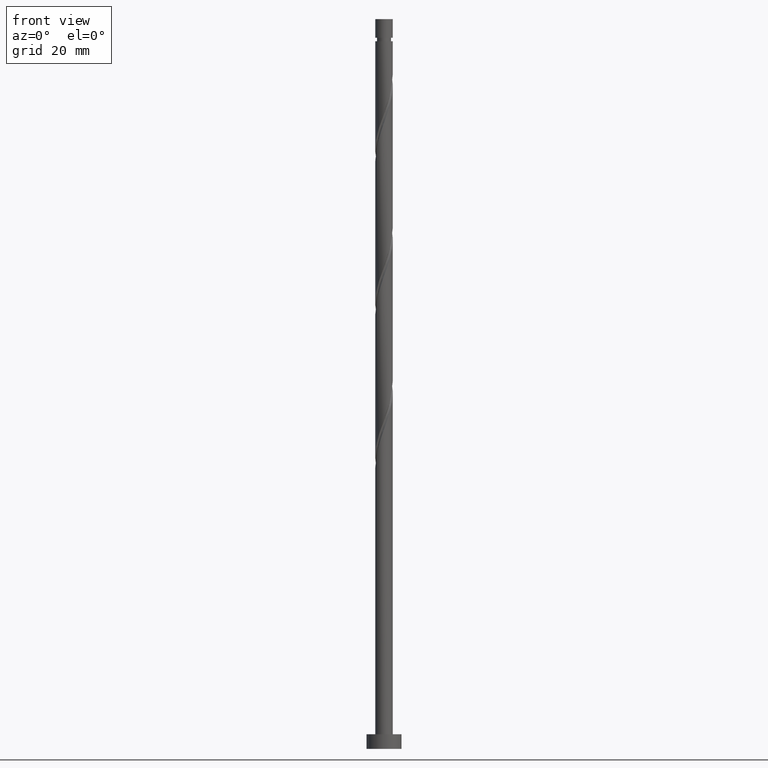
[diagram: clean part render]
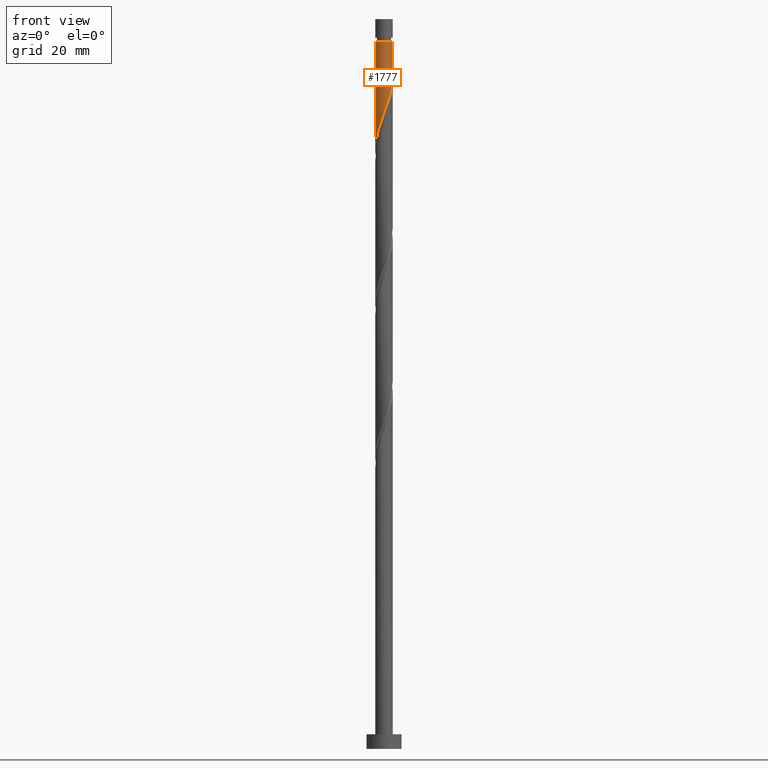
[diagram: same view with one face highlighted and labeled with its STEP entity id]
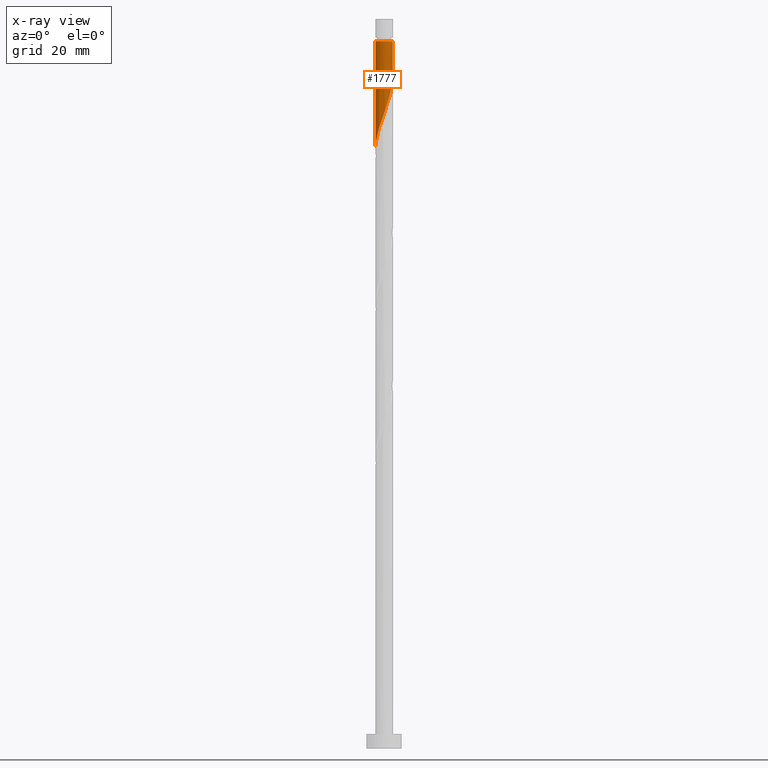
[diagram: x-ray of the same camera — body ghosted, the highlighted face saturated]
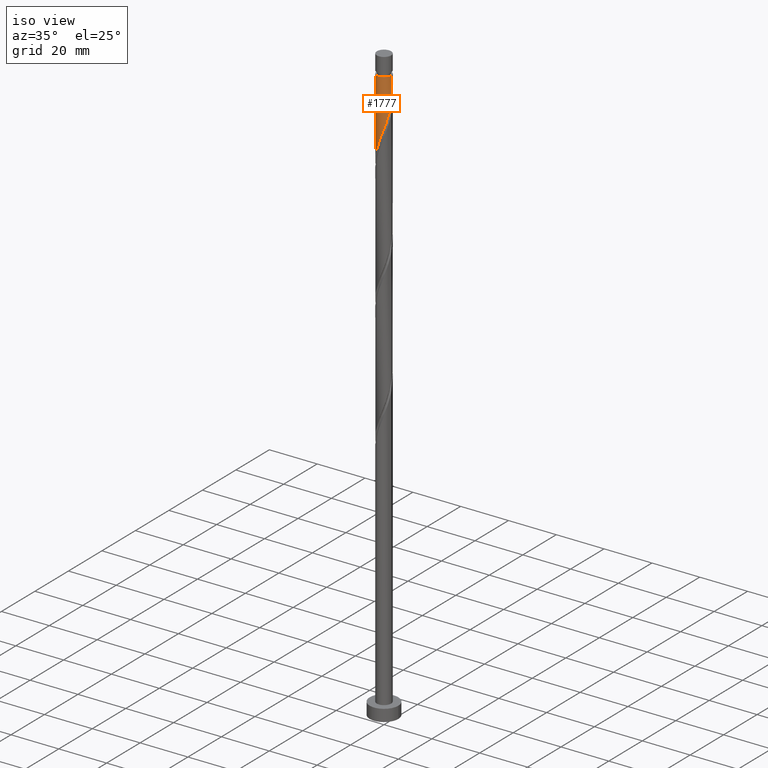
[diagram: same view with one face highlighted and labeled with its STEP entity id]
A machine part, front view. The second image highlights one B-rep face of the part: STEP entity #1777.
The next image is the same camera in x-ray: the body ghosted, the highlighted face saturated — about 0% of this face is hidden behind the body in this view.
A second angle (iso view) of the same face is appended — the face is thin or edge-on in the first view.
In plain terms, the highlighted cylindrical surface (edge-blend (fillet) strip) has radius 3 mm, axis along (-0, -0, -1).
Its self-contained STEP definition (entity closure, byte-faithful):
#40 = CARTESIAN_POINT ( 'NONE',  ( -2.516856822501207347, -1.667239772048620283, 209.5885515846316878 ) ) ;
#49 = CARTESIAN_POINT ( 'NONE',  ( -1.544221415739432501, -2.594154378914892867, 213.3385515846317162 ) ) ;
#55 = AXIS2_PLACEMENT_3D ( 'NONE', #210, #521, #60 ) ;
#60 = DIRECTION ( 'NONE',  ( -1.000000000000000000, 0.000000000000000000, 0.000000000000000000 ) ) ;
#160 = CARTESIAN_POINT ( 'NONE',  ( -2.999131382082420583, -0.07218693100826277520, 204.9010515846316594 ) ) ;
#162 = ORIENTED_EDGE ( 'NONE', *, *, #298, .F. ) ;
#175 = VECTOR ( 'NONE', #1135, 1000.000000000000000 ) ;
#178 = CARTESIAN_POINT ( 'NONE',  ( 1.366312515670594641, -2.670803270464129575, 221.7760515846316878 ) ) ;
#210 = CARTESIAN_POINT ( 'NONE',  ( 0.000000000000000000, 0.000000000000000000, 250.0000000000000000 ) ) ;
#275 = EDGE_LOOP ( 'NONE', ( #801, #976, #1255, #162 ) ) ;
#298 = EDGE_CURVE ( 'NONE', #1192, #1520, #477, .T. ) ;
#313 = CARTESIAN_POINT ( 'NONE',  ( -0.9282509055703001000, -2.872735104178512078, 215.2135515846316878 ) ) ;
#354 = CYLINDRICAL_SURFACE ( 'NONE', #55, 3.000000000000000444 ) ;
#360 = EDGE_CURVE ( 'NONE', #1549, #1192, #941, .T. ) ;
#381 = CARTESIAN_POINT ( 'NONE',  ( -3.000000000000000444, 0.000000000000000000, 250.0000000000000000 ) ) ;
#389 = VECTOR ( 'NONE', #632, 1000.000000000000000 ) ;
#430 = DIRECTION ( 'NONE',  ( -1.000000000000000000, 0.000000000000000000, 0.000000000000000000 ) ) ;
#471 = CARTESIAN_POINT ( 'NONE',  ( 1.065385259292570330, -2.824749718427053136, 220.8385515846316878 ) ) ;
#477 =( BOUNDED_CURVE ( )  B_SPLINE_CURVE ( 2, ( #1379, #1390, #1059, #1535, #639, #810, #1223, #1212, #933, #1370, #178, #471, #799, #1361, #768, #1678, #1080, #313, #1232, #49, #909, #789, #1655, #40, #1090, #1509, #1820, #649, #160, #1811, #490 ),
 .UNSPECIFIED., .F., .T. ) 
 B_SPLINE_CURVE_WITH_KNOTS ( ( 3, 2, 2, 2, 2, 2, 2, 2, 2, 2, 2, 2, 2, 2, 2, 3 ),
 ( 0.3045303401299220281, 0.3125000000000000000, 0.3214285714285714524, 0.3303571428571428492, 0.3392857142857143016, 0.3482142857142856984, 0.3571428571428571508, 0.3660714285714285476, 0.3750000000000000000, 0.3839285714285714524, 0.3928571428571428492, 0.4017857142857143016, 0.4107142857142856984, 0.4196428571428571508, 0.4285714285714285476, 0.4295303401299216950 ),
 .UNSPECIFIED. ) 
 CURVE ( )  GEOMETRIC_REPRESENTATION_ITEM ( )  RATIONAL_B_SPLINE_CURVE ( ( 0.9079949616362029685, 0.9039886423360660173, 0.9090909090909328194, 0.9033747362666078029, 0.9090909090909328194, 0.9033747362666078029, 0.9090909090909328194, 0.9033747362666078029, 0.9090909090909328194, 0.9033747362666078029, 0.9090909090909328194, 0.9033747362666078029, 0.9090909090909328194, 0.9033747362666078029, 0.9090909090909328194, 0.9033747362666078029, 0.9090909090909328194, 0.9033747362666078029, 0.9090909090909328194, 0.9033747362666078029, 0.9090909090909328194, 0.9033747362666078029, 0.9090909090909328194, 0.9033747362666078029, 0.9090909090909328194, 0.9033747362666078029, 0.9090909090909328194, 0.9033747362666078029, 0.9090909090909328194, 0.9084770030214748271, 0.9079949616362033016 ) ) 
 REPRESENTATION_ITEM ( '' )  );
#490 = CARTESIAN_POINT ( 'NONE',  ( -3.000000000000000444, -3.731443380381541184E-15, 204.7005686625377621 ) ) ;
#520 = DIRECTION ( 'NONE',  ( -0.000000000000000000, -0.000000000000000000, -1.000000000000000000 ) ) ;
#521 = DIRECTION ( 'NONE',  ( -0.000000000000000000, -0.000000000000000000, -1.000000000000000000 ) ) ;
#543 = LINE ( 'NONE', #381, #175 ) ;
#632 = DIRECTION ( 'NONE',  ( -0.000000000000000000, -0.000000000000000000, -1.000000000000000000 ) ) ;
#639 = CARTESIAN_POINT ( 'NONE',  ( 2.733444741546702250, -1.236236160654866190, 227.4010515846316309 ) ) ;
#649 = CARTESIAN_POINT ( 'NONE',  ( -2.990997868343353794, -0.4101078809741723341, 205.8385515846317446 ) ) ;
#694 = EDGE_CURVE ( 'NONE', #1549, #1341, #747, .T. ) ;
#747 = CIRCLE ( 'NONE', #1732, 2.999999999999983125 ) ;
#768 = CARTESIAN_POINT ( 'NONE',  ( 0.07218693100826256703, -2.999131382082420583, 218.0260515846316878 ) ) ;
#788 = CARTESIAN_POINT ( 'NONE',  ( -3.000000000000000444, -3.731443380381541184E-15, 204.7005686625377621 ) ) ;
#789 = CARTESIAN_POINT ( 'NONE',  ( -2.082758216016309394, -2.185491920847151270, 211.4635515846317446 ) ) ;
#799 = CARTESIAN_POINT ( 'NONE',  ( 0.7377465701333710824, -2.907873793385202799, 219.9010515846316594 ) ) ;
#801 = ORIENTED_EDGE ( 'NONE', *, *, #360, .F. ) ;
#810 = CARTESIAN_POINT ( 'NONE',  ( 2.594154378914892867, -1.544221415739432501, 226.4635515846317162 ) ) ;
#908 = CARTESIAN_POINT ( 'NONE',  ( 2.999999999999983125, 3.673940397442049514E-16, 242.4010515846316878 ) ) ;
#909 = CARTESIAN_POINT ( 'NONE',  ( -1.813489815877870504, -2.389823149881022069, 212.4010515846316594 ) ) ;
#933 = CARTESIAN_POINT ( 'NONE',  ( 1.926365846447885444, -2.299807519258759037, 223.6510515846316309 ) ) ;
#941 = LINE ( 'NONE', #1685, #389 ) ;
#976 = ORIENTED_EDGE ( 'NONE', *, *, #694, .T. ) ;
#1054 = EDGE_CURVE ( 'NONE', #1341, #1520, #543, .T. ) ;
#1059 = CARTESIAN_POINT ( 'NONE',  ( 2.940000000000000391, -0.5969924622639736222, 229.2760515846316594 ) ) ;
#1080 = CARTESIAN_POINT ( 'NONE',  ( -0.5969924622639734002, -2.940000000000000391, 216.1510515846316594 ) ) ;
#1090 = CARTESIAN_POINT ( 'NONE',  ( -2.670803270464129575, -1.366312515670594641, 208.6510515846316594 ) ) ;
#1096 = CARTESIAN_POINT ( 'NONE',  ( 3.000000000000000444, -7.612144495978345545E-16, 230.9505686625377336 ) ) ;
#1135 = DIRECTION ( 'NONE',  ( -0.000000000000000000, -0.000000000000000000, -1.000000000000000000 ) ) ;
#1192 = VERTEX_POINT ( 'NONE', #1096 ) ;
#1212 = CARTESIAN_POINT ( 'NONE',  ( 2.185491920847151270, -2.082758216016309394, 224.5885515846316594 ) ) ;
#1223 = CARTESIAN_POINT ( 'NONE',  ( 2.389823149881022069, -1.813489815877870948, 225.5260515846316878 ) ) ;
#1232 = CARTESIAN_POINT ( 'NONE',  ( -1.236236160654866190, -2.733444741546702250, 214.2760515846316878 ) ) ;
#1255 = ORIENTED_EDGE ( 'NONE', *, *, #1054, .T. ) ;
#1325 = CARTESIAN_POINT ( 'NONE',  ( -2.999999999999983125, 0.000000000000000000, 242.4010515846316878 ) ) ;
#1341 = VERTEX_POINT ( 'NONE', #1325 ) ;
#1361 = CARTESIAN_POINT ( 'NONE',  ( 0.4101078809741720566, -2.990997868343353794, 218.9635515846316594 ) ) ;
#1370 = CARTESIAN_POINT ( 'NONE',  ( 1.667239772048620283, -2.516856822501207791, 222.7135515846317162 ) ) ;
#1379 = CARTESIAN_POINT ( 'NONE',  ( 3.000000000000000444, -7.612144495978345545E-16, 230.9505686625377336 ) ) ;
#1390 = CARTESIAN_POINT ( 'NONE',  ( 3.000000000000000888, -0.3015113445777648504, 230.1122975835741613 ) ) ;
#1400 = FACE_OUTER_BOUND ( 'NONE', #275, .T. ) ;
#1509 = CARTESIAN_POINT ( 'NONE',  ( -2.824749718427053136, -1.065385259292570330, 207.7135515846316594 ) ) ;
#1520 = VERTEX_POINT ( 'NONE', #788 ) ;
#1535 = CARTESIAN_POINT ( 'NONE',  ( 2.872735104178511634, -0.9282509055703003220, 228.3385515846317446 ) ) ;
#1549 = VERTEX_POINT ( 'NONE', #908 ) ;
#1655 = CARTESIAN_POINT ( 'NONE',  ( -2.299807519258759037, -1.926365846447885444, 210.5260515846316309 ) ) ;
#1678 = CARTESIAN_POINT ( 'NONE',  ( -0.2657340189576470335, -3.007264895821488260, 217.0885515846317446 ) ) ;
#1685 = CARTESIAN_POINT ( 'NONE',  ( 3.000000000000000444, 3.673940397442060361E-16, 250.0000000000000000 ) ) ;
#1732 = AXIS2_PLACEMENT_3D ( 'NONE', #1847, #520, #430 ) ;
#1777 = ADVANCED_FACE ( 'NONE', ( #1400 ), #354, .T. ) ;
#1811 = CARTESIAN_POINT ( 'NONE',  ( -2.999999999999999556, -0.03609869149918326636, 204.8009313507628519 ) ) ;
#1820 = CARTESIAN_POINT ( 'NONE',  ( -2.907873793385202799, -0.7377465701333713044, 206.7760515846316878 ) ) ;
#1847 = CARTESIAN_POINT ( 'NONE',  ( 0.000000000000000000, 0.000000000000000000, 242.4010515846316878 ) ) ;